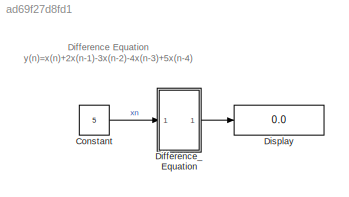
MODEL slx_ad69f27d8fd1
KIND model
CONFIG AbsTol = auto
CONFIG EnableMultiTasking = off
CONFIG FixedStep = auto
CONFIG MaxStep = auto
CONFIG MinStep = auto
CONFIG RelTol = 1e-3
CONFIG SampleTimeConstraint = Unconstrained
CONFIG SolverName = VariableStepAuto
CONFIG StartTime = 0.0
CONFIG StopTime = 3
BLOCK [Constant] Constant
  Value = 5
BLOCK [ModelReference] Difference_Equation
  ModelNameDialog = Subsystem
  ModelReferenceVersion = 1.4
  Ports = [1, 1]
BLOCK [Display] Display
  Decimation = 1
  Ports = [1]
ANNOTATION (root): Difference Equation y(n)=x(n)+2x(n-1)-3x(n-2)-4x(n-3)+5x(n-4)
LINE Constant:1 -> Difference_Equation:1
LINE Difference_Equation:1 -> Display:1
